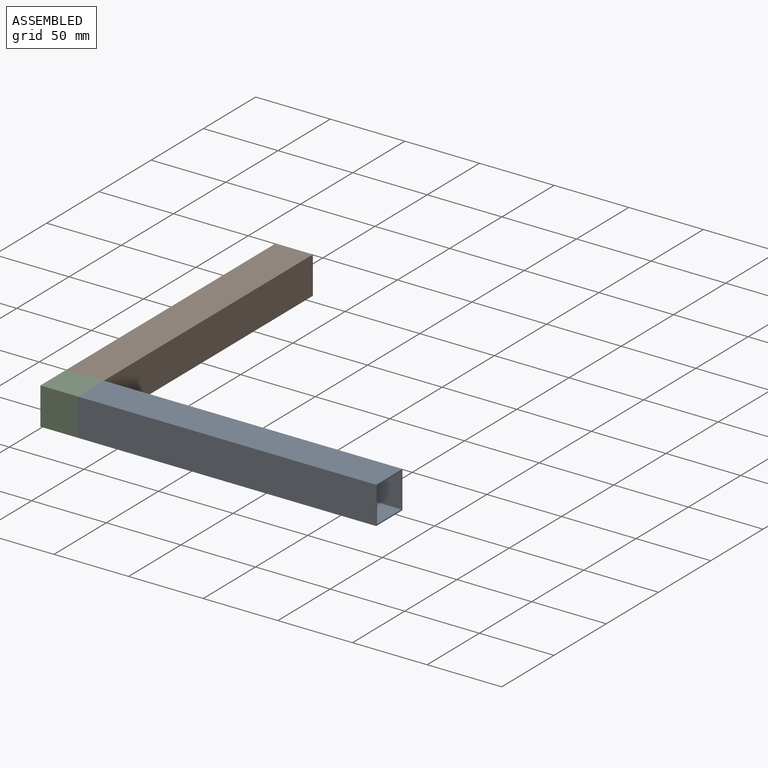
[diagram: assembled view]
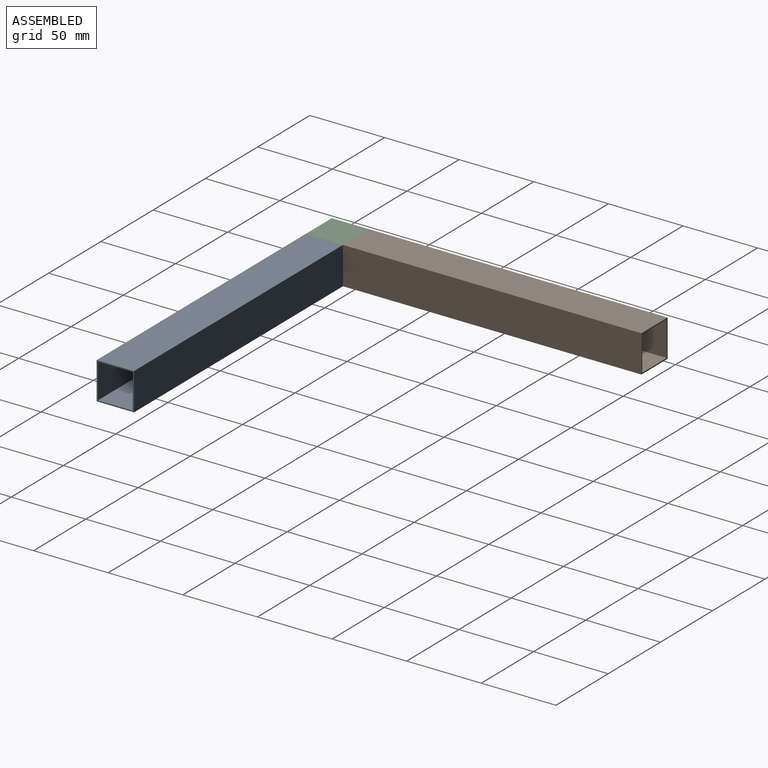
[diagram: assembled view, second angle]
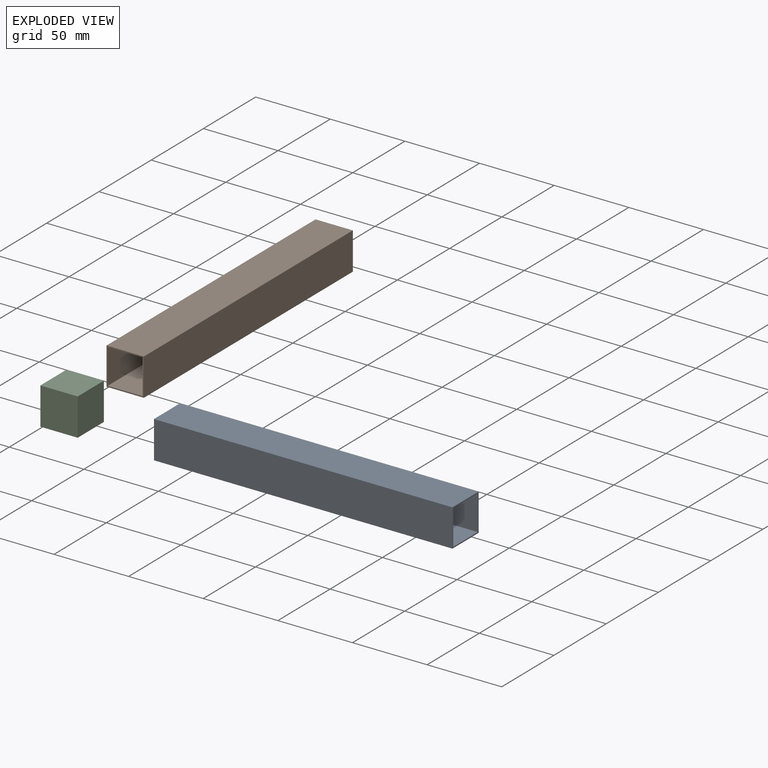
[diagram: exploded view]
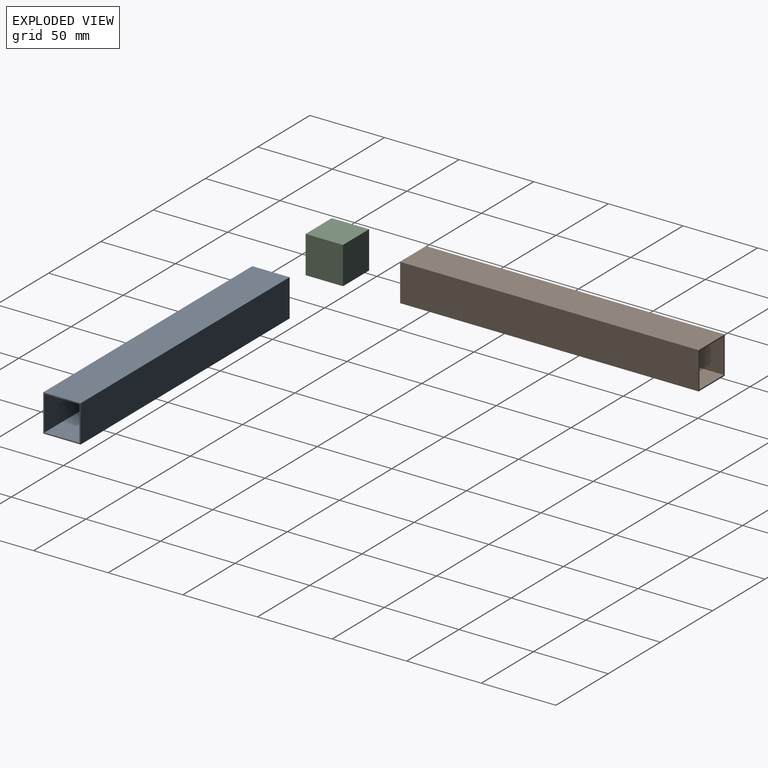
[diagram: exploded view, second angle]
ASSEMBLY  parts=3 mates=2
PART A: 10 faces, bbox 25x200x25 mm
  f0: plane 200x25mm, normal (0,0,-1), area 5000mm2, adj f1,f7,f8,f9
  f1: plane 200x25mm, normal (1,0,0), area 5000mm2, adj f0,f2,f8,f9
  f2: plane 200x25mm, normal (0,0,1), area 5000mm2, adj f1,f7,f8,f9
  f3: plane 200x23.4mm, normal (-1,0,0), area 4680mm2, adj f4,f6,f8,f9
  f4: plane 200x23.4mm, normal (0,0,1), area 4680mm2, adj f3,f5,f8,f9
  f5: plane 200x23.4mm, normal (1,0,0), area 4680mm2, adj f4,f6,f8,f9
  f6: plane 200x23.4mm, normal (0,0,-1), area 4680mm2, adj f3,f5,f8,f9
  f7: plane 200x25mm, normal (-1,0,0), area 5000mm2, adj f0,f2,f8,f9
  f8: plane 25x25mm, normal (0,-1,0), area 77.4mm2, adj f0,f1,f2,f3,f4,f5,f6,f7
  f9: plane 25x25mm, normal (0,1,0), area 77.4mm2, adj f0,f1,f2,f3,f4,f5,f6,f7
PART B: same geometry as A
PART C: 6 faces, bbox 25x25x25 mm
  f0: plane 25x25mm, normal (0,0,-1), area 625mm2, adj f1,f3,f4,f5
  f1: plane 25x25mm, normal (1,0,0), area 625mm2, adj f0,f2,f4,f5
  f2: plane 25x25mm, normal (0,0,1), area 625mm2, adj f1,f3,f4,f5
  f3: plane 25x25mm, normal (-1,0,0), area 625mm2, adj f0,f2,f4,f5
  f4: plane 25x25mm, normal (0,-1,0), area 625mm2, adj f0,f1,f2,f3
  f5: plane 25x25mm, normal (0,1,0), area 625mm2, adj f0,f1,f2,f3
PLACE A rot(axis=(0,0,-1),90deg) t=(129.73,-314.45,-103.12)mm
PLACE B t=(-82.77,-101.95,-103.12)mm
PLACE C rot(axis=(0.58,-0.58,0.58),120deg) t=(-95.27,-314.45,-103.12)mm
MATE fastened C.f0 <-> B.f8  axis (0,1,0) through (-95.27,-301.95,-115.62)mm
MATE fastened C.f4 <-> A.f8  axis (1,0,0) through (-70.27,-326.95,-90.62)mm
